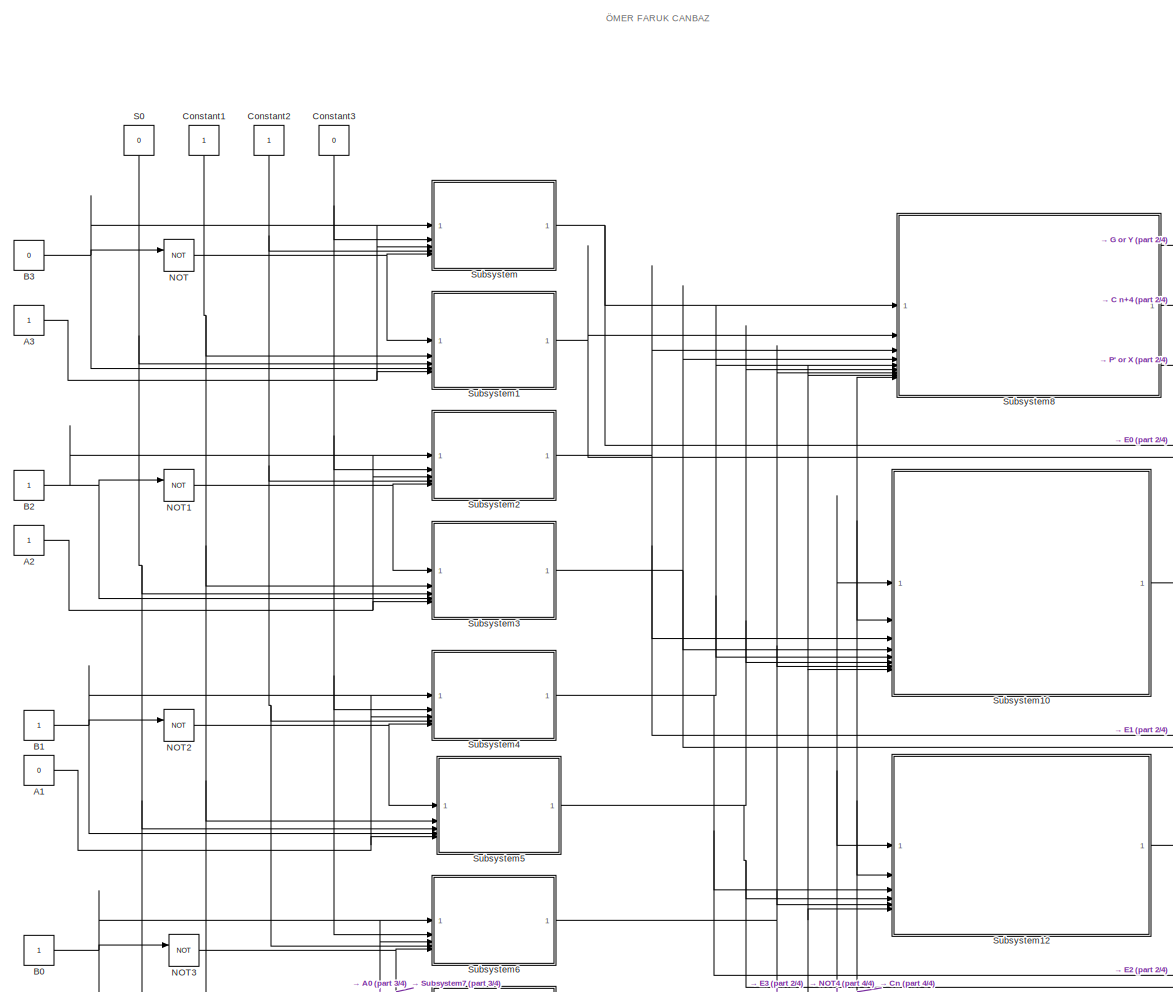
[diagram: root canvas - part 1/4, left side, full height]
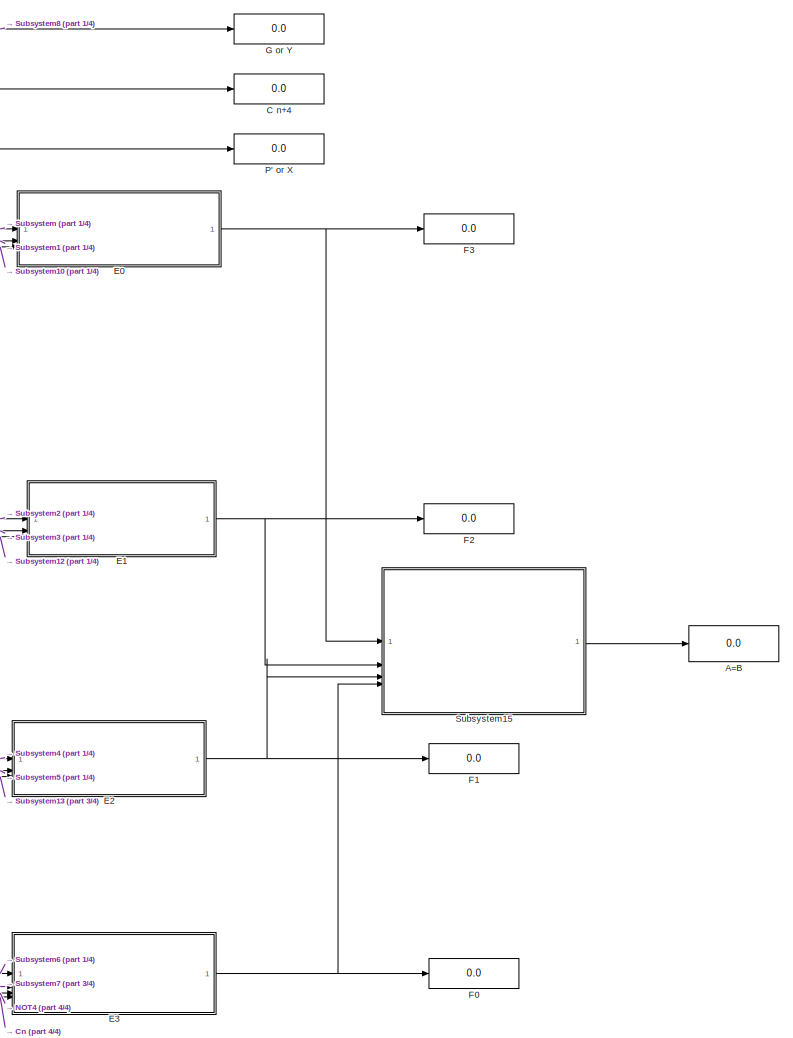
[diagram: root canvas - part 2/4, right side, full height]
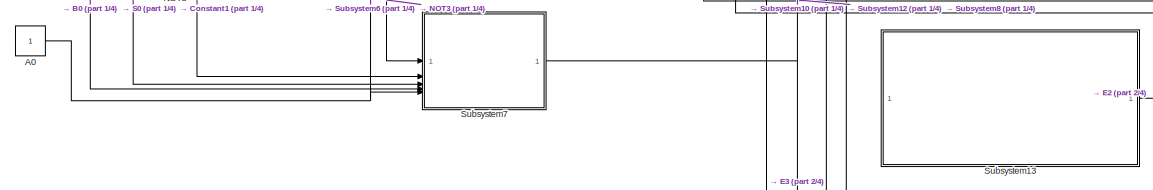
[diagram: root canvas - part 3/4, bottom left region]
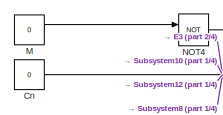
[diagram: root canvas - part 4/4, bottom left region]
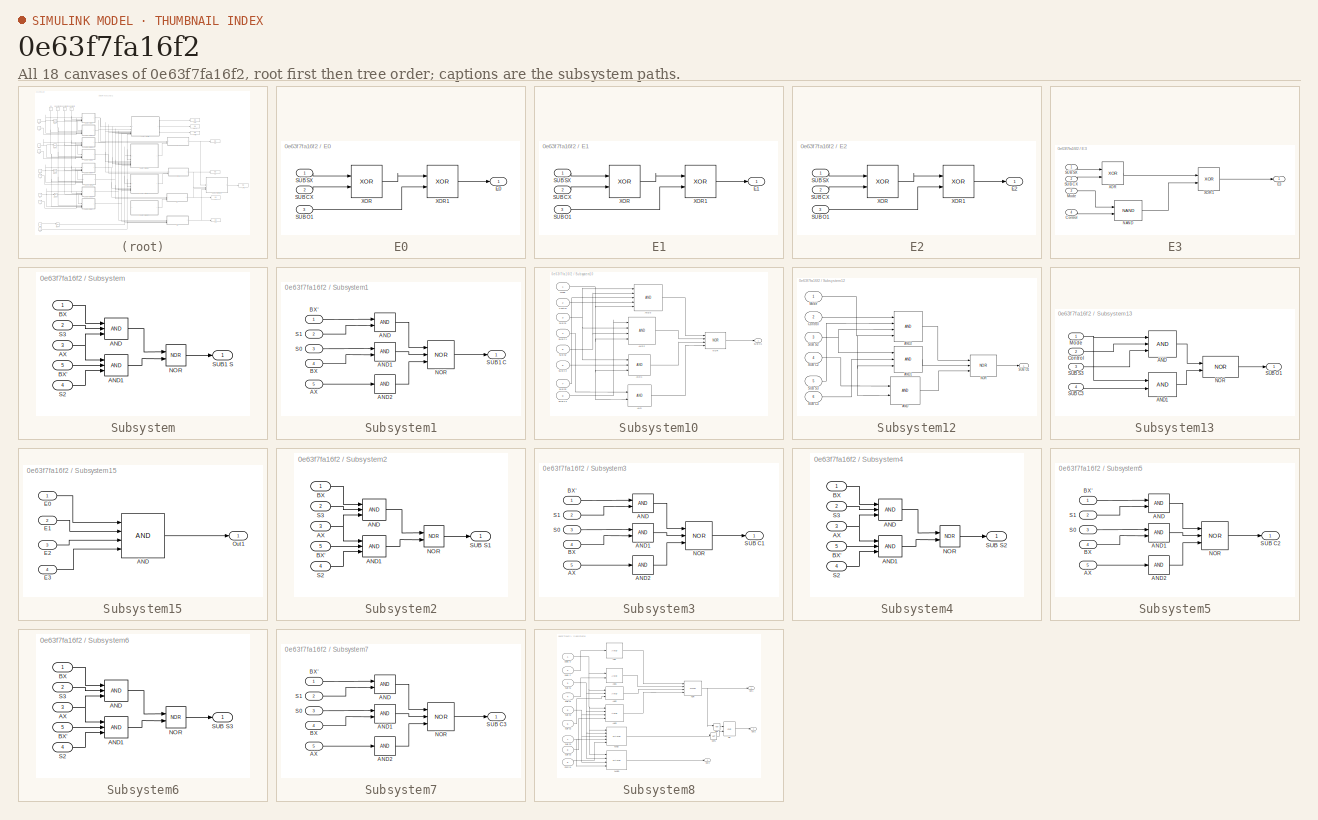
[diagram: thumbnail index - all 18 canvases of the model, root first then tree order]
MODEL slx_0e63f7fa16f2
KIND model
CONFIG AbsTol = auto
CONFIG EnableMultiTasking = off
CONFIG FixedStep = auto
CONFIG MaxStep = auto
CONFIG MinStep = auto
CONFIG RelTol = 1e-3
CONFIG SampleTimeConstraint = Unconstrained
CONFIG SolverName = VariableStepAuto
CONFIG StartTime = 0.0
CONFIG StopTime = 10.0
BLOCK [Constant] A0
BLOCK [Constant] A1
  Value = 0
BLOCK [Constant] A2
BLOCK [Constant] A3
BLOCK [Display] A=B
  Decimation = 1
BLOCK [Constant] B0
BLOCK [Constant] B1
BLOCK [Constant] B2
BLOCK [Constant] B3
  Value = 0
BLOCK [Display] C n+4
  Decimation = 1
BLOCK [Constant] Cn
  Value = 0
BLOCK [Constant] Constant1
  NameLocation = left
BLOCK [Constant] Constant2
  NameLocation = left
BLOCK [Constant] Constant3
  NameLocation = left
  Value = 0
BLOCK [SubSystem] E0
BLOCK [Outport] E0/E0
BLOCK [Inport] E0/SUB CX
  Port = 2
BLOCK [Inport] E0/SUB O1
  Port = 3
BLOCK [Inport] E0/SUB SX
BLOCK [Logic] E0/XOR
  AllPortsSameDT = off
  IconShape = distinctive
  Operator = XOR
  OutDataTypeStr = boolean
BLOCK [Logic] E0/XOR1
  AllPortsSameDT = off
  IconShape = distinctive
  Operator = XOR
  OutDataTypeStr = boolean
BLOCK [SubSystem] E1
BLOCK [Outport] E1/E1
BLOCK [Inport] E1/SUB CX
  Port = 2
BLOCK [Inport] E1/SUB O1
  Port = 3
BLOCK [Inport] E1/SUB SX
BLOCK [Logic] E1/XOR
  AllPortsSameDT = off
  IconShape = distinctive
  Operator = XOR
  OutDataTypeStr = boolean
BLOCK [Logic] E1/XOR1
  AllPortsSameDT = off
  IconShape = distinctive
  Operator = XOR
  OutDataTypeStr = boolean
BLOCK [SubSystem] E2
BLOCK [Outport] E2/E2
BLOCK [Inport] E2/SUB CX
  Port = 2
BLOCK [Inport] E2/SUB O1
  Port = 3
BLOCK [Inport] E2/SUB SX
BLOCK [Logic] E2/XOR
  AllPortsSameDT = off
  IconShape = distinctive
  Operator = XOR
  OutDataTypeStr = boolean
BLOCK [Logic] E2/XOR1
  AllPortsSameDT = off
  IconShape = distinctive
  Operator = XOR
  OutDataTypeStr = boolean
BLOCK [SubSystem] E3
BLOCK [Inport] E3/Control
  Port = 4
BLOCK [Outport] E3/E3
BLOCK [Inport] E3/Mode
  Port = 3
BLOCK [Logic] E3/NAND
  AllPortsSameDT = off
  IconShape = distinctive
  Operator = NAND
  OutDataTypeStr = boolean
BLOCK [Inport] E3/SUB CX
  Port = 2
BLOCK [Inport] E3/SUB SX
BLOCK [Logic] E3/XOR
  AllPortsSameDT = off
  IconShape = distinctive
  Operator = XOR
  OutDataTypeStr = boolean
BLOCK [Logic] E3/XOR1
  AllPortsSameDT = off
  IconShape = distinctive
  Operator = XOR
  OutDataTypeStr = boolean
BLOCK [Display] F0
  Decimation = 1
BLOCK [Display] F1
  Decimation = 1
BLOCK [Display] F2
  Decimation = 1
BLOCK [Display] F3
  Decimation = 1
BLOCK [Display] G or Y
  Decimation = 1
BLOCK [Constant] M
  Value = 0
BLOCK [Logic] NOT
  AllPortsSameDT = off
  IconShape = distinctive
  Operator = NOT
  OutDataTypeStr = boolean
BLOCK [Logic] NOT1
  AllPortsSameDT = off
  IconShape = distinctive
  Operator = NOT
  OutDataTypeStr = boolean
BLOCK [Logic] NOT2
  AllPortsSameDT = off
  IconShape = distinctive
  Operator = NOT
  OutDataTypeStr = boolean
BLOCK [Logic] NOT3
  AllPortsSameDT = off
  IconShape = distinctive
  Operator = NOT
  OutDataTypeStr = boolean
BLOCK [Logic] NOT4
  AllPortsSameDT = off
  IconShape = distinctive
  Operator = NOT
  OutDataTypeStr = boolean
BLOCK [Display] P' or X
  Decimation = 1
BLOCK [Constant] S0
  NameLocation = left
  Value = 0
BLOCK [SubSystem] Subsystem
BLOCK [Logic] Subsystem/AND
  AllPortsSameDT = off
  IconShape = distinctive
  Inputs = 3
  OutDataTypeStr = boolean
BLOCK [Logic] Subsystem/AND1
  AllPortsSameDT = off
  IconShape = distinctive
  Inputs = 3
  OutDataTypeStr = boolean
BLOCK [Inport] Subsystem/AX
  Port = 3
BLOCK [Inport] Subsystem/BX
BLOCK [Inport] Subsystem/BX'
  Port = 5
BLOCK [Logic] Subsystem/NOR
  AllPortsSameDT = off
  IconShape = distinctive
  Operator = NOR
  OutDataTypeStr = boolean
BLOCK [Inport] Subsystem/S2
  Port = 4
BLOCK [Inport] Subsystem/S3
  Port = 2
BLOCK [Outport] Subsystem/SUB1 S
BLOCK [SubSystem] Subsystem1
BLOCK [Logic] Subsystem1/AND
  AllPortsSameDT = off
  IconShape = distinctive
  OutDataTypeStr = boolean
BLOCK [Logic] Subsystem1/AND1
  AllPortsSameDT = off
  IconShape = distinctive
  OutDataTypeStr = boolean
BLOCK [Logic] Subsystem1/AND2
  AllPortsSameDT = off
  IconShape = distinctive
  Inputs = 1
  OutDataTypeStr = boolean
BLOCK [Inport] Subsystem1/AX
  Port = 5
BLOCK [Inport] Subsystem1/BX
  Port = 4
BLOCK [Inport] Subsystem1/BX'
BLOCK [Logic] Subsystem1/NOR
  AllPortsSameDT = off
  IconShape = distinctive
  Inputs = 3
  Operator = NOR
  OutDataTypeStr = boolean
BLOCK [Inport] Subsystem1/S0
  Port = 3
BLOCK [Inport] Subsystem1/S1
  Port = 2
BLOCK [Outport] Subsystem1/SUB1 C
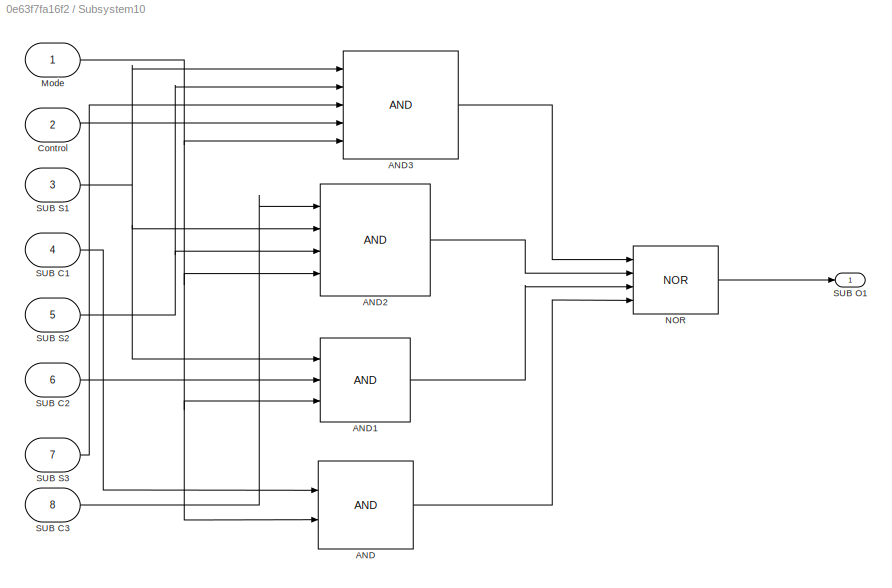
BLOCK [SubSystem] Subsystem10
BLOCK [Inport] Subsystem10/ Control
  Port = 2
BLOCK [Inport] Subsystem10/ Mode
BLOCK [Logic] Subsystem10/AND
  AllPortsSameDT = off
  IconShape = distinctive
  OutDataTypeStr = boolean
BLOCK [Logic] Subsystem10/AND1
  AllPortsSameDT = off
  IconShape = distinctive
  Inputs = 3
  OutDataTypeStr = boolean
BLOCK [Logic] Subsystem10/AND2
  AllPortsSameDT = off
  IconShape = distinctive
  Inputs = 4
  OutDataTypeStr = boolean
BLOCK [Logic] Subsystem10/AND3
  AllPortsSameDT = off
  IconShape = distinctive
  Inputs = 5
  OutDataTypeStr = boolean
BLOCK [Logic] Subsystem10/NOR
  AllPortsSameDT = off
  IconShape = distinctive
  Inputs = 4
  Operator = NOR
  OutDataTypeStr = boolean
BLOCK [Inport] Subsystem10/SUB C1
  Port = 4
BLOCK [Inport] Subsystem10/SUB C2
  Port = 6
BLOCK [Inport] Subsystem10/SUB C3
  Port = 8
BLOCK [Outport] Subsystem10/SUB O1
BLOCK [Inport] Subsystem10/SUB S1
  Port = 3
BLOCK [Inport] Subsystem10/SUB S2
  Port = 5
BLOCK [Inport] Subsystem10/SUB S3
  Port = 7
BLOCK [SubSystem] Subsystem12
BLOCK [Inport] Subsystem12/ Control
  Port = 2
BLOCK [Inport] Subsystem12/ Mode
BLOCK [Logic] Subsystem12/AND
  AllPortsSameDT = off
  IconShape = distinctive
  OutDataTypeStr = boolean
BLOCK [Logic] Subsystem12/AND1
  AllPortsSameDT = off
  IconShape = distinctive
  Inputs = 3
  OutDataTypeStr = boolean
BLOCK [Logic] Subsystem12/AND2
  AllPortsSameDT = off
  IconShape = distinctive
  Inputs = 4
  OutDataTypeStr = boolean
BLOCK [Logic] Subsystem12/NOR
  AllPortsSameDT = off
  IconShape = distinctive
  Inputs = 3
  Operator = NOR
  OutDataTypeStr = boolean
BLOCK [Inport] Subsystem12/SUB C2
  Port = 4
BLOCK [Inport] Subsystem12/SUB C3
  Port = 6
BLOCK [Outport] Subsystem12/SUB O1
BLOCK [Inport] Subsystem12/SUB S2
  Port = 3
BLOCK [Inport] Subsystem12/SUB S3
  Port = 5
BLOCK [SubSystem] Subsystem13
BLOCK [Logic] Subsystem13/AND
  AllPortsSameDT = off
  IconShape = distinctive
  Inputs = 3
  OutDataTypeStr = boolean
BLOCK [Logic] Subsystem13/AND1
  AllPortsSameDT = off
  IconShape = distinctive
  OutDataTypeStr = boolean
BLOCK [Inport] Subsystem13/Control
  Port = 2
BLOCK [Inport] Subsystem13/Mode
BLOCK [Logic] Subsystem13/NOR
  AllPortsSameDT = off
  IconShape = distinctive
  Operator = NOR
  OutDataTypeStr = boolean
BLOCK [Inport] Subsystem13/SUB C3
  Port = 4
BLOCK [Outport] Subsystem13/SUB O1
BLOCK [Inport] Subsystem13/SUB S3
  Port = 3
BLOCK [SubSystem] Subsystem15
BLOCK [Logic] Subsystem15/AND
  AllPortsSameDT = off
  IconShape = distinctive
  Inputs = 4
  OutDataTypeStr = boolean
BLOCK [Inport] Subsystem15/E0
BLOCK [Inport] Subsystem15/E1
  Port = 2
BLOCK [Inport] Subsystem15/E2
  Port = 3
BLOCK [Inport] Subsystem15/E3
  Port = 4
BLOCK [Outport] Subsystem15/Out1
BLOCK [SubSystem] Subsystem2
BLOCK [Logic] Subsystem2/AND
  AllPortsSameDT = off
  IconShape = distinctive
  Inputs = 3
  OutDataTypeStr = boolean
BLOCK [Logic] Subsystem2/AND1
  AllPortsSameDT = off
  IconShape = distinctive
  Inputs = 3
  OutDataTypeStr = boolean
BLOCK [Inport] Subsystem2/AX
  Port = 3
BLOCK [Inport] Subsystem2/BX
BLOCK [Inport] Subsystem2/BX'
  Port = 5
BLOCK [Logic] Subsystem2/NOR
  AllPortsSameDT = off
  IconShape = distinctive
  Operator = NOR
  OutDataTypeStr = boolean
BLOCK [Inport] Subsystem2/S2
  Port = 4
BLOCK [Inport] Subsystem2/S3
  Port = 2
BLOCK [Outport] Subsystem2/SUB S1
BLOCK [SubSystem] Subsystem3
BLOCK [Logic] Subsystem3/AND
  AllPortsSameDT = off
  IconShape = distinctive
  OutDataTypeStr = boolean
BLOCK [Logic] Subsystem3/AND1
  AllPortsSameDT = off
  IconShape = distinctive
  OutDataTypeStr = boolean
BLOCK [Logic] Subsystem3/AND2
  AllPortsSameDT = off
  IconShape = distinctive
  Inputs = 1
  OutDataTypeStr = boolean
BLOCK [Inport] Subsystem3/AX
  Port = 5
BLOCK [Inport] Subsystem3/BX
  Port = 4
BLOCK [Inport] Subsystem3/BX'
BLOCK [Logic] Subsystem3/NOR
  AllPortsSameDT = off
  IconShape = distinctive
  Inputs = 3
  Operator = NOR
  OutDataTypeStr = boolean
BLOCK [Inport] Subsystem3/S0
  Port = 3
BLOCK [Inport] Subsystem3/S1
  Port = 2
BLOCK [Outport] Subsystem3/SUB C1
BLOCK [SubSystem] Subsystem4
BLOCK [Logic] Subsystem4/AND
  AllPortsSameDT = off
  IconShape = distinctive
  Inputs = 3
  OutDataTypeStr = boolean
BLOCK [Logic] Subsystem4/AND1
  AllPortsSameDT = off
  IconShape = distinctive
  Inputs = 3
  OutDataTypeStr = boolean
BLOCK [Inport] Subsystem4/AX
  Port = 3
BLOCK [Inport] Subsystem4/BX
BLOCK [Inport] Subsystem4/BX'
  Port = 5
BLOCK [Logic] Subsystem4/NOR
  AllPortsSameDT = off
  IconShape = distinctive
  Operator = NOR
  OutDataTypeStr = boolean
BLOCK [Inport] Subsystem4/S2
  Port = 4
BLOCK [Inport] Subsystem4/S3
  Port = 2
BLOCK [Outport] Subsystem4/SUB S2
BLOCK [SubSystem] Subsystem5
BLOCK [Logic] Subsystem5/AND
  AllPortsSameDT = off
  IconShape = distinctive
  OutDataTypeStr = boolean
BLOCK [Logic] Subsystem5/AND1
  AllPortsSameDT = off
  IconShape = distinctive
  OutDataTypeStr = boolean
BLOCK [Logic] Subsystem5/AND2
  AllPortsSameDT = off
  IconShape = distinctive
  Inputs = 1
  OutDataTypeStr = boolean
BLOCK [Inport] Subsystem5/AX
  Port = 5
BLOCK [Inport] Subsystem5/BX
  Port = 4
BLOCK [Inport] Subsystem5/BX'
BLOCK [Logic] Subsystem5/NOR
  AllPortsSameDT = off
  IconShape = distinctive
  Inputs = 3
  Operator = NOR
  OutDataTypeStr = boolean
BLOCK [Inport] Subsystem5/S0
  Port = 3
BLOCK [Inport] Subsystem5/S1
  Port = 2
BLOCK [Outport] Subsystem5/SUB C2
BLOCK [SubSystem] Subsystem6
BLOCK [Logic] Subsystem6/AND
  AllPortsSameDT = off
  IconShape = distinctive
  Inputs = 3
  OutDataTypeStr = boolean
BLOCK [Logic] Subsystem6/AND1
  AllPortsSameDT = off
  IconShape = distinctive
  Inputs = 3
  OutDataTypeStr = boolean
BLOCK [Inport] Subsystem6/AX
  Port = 3
BLOCK [Inport] Subsystem6/BX
BLOCK [Inport] Subsystem6/BX'
  Port = 5
BLOCK [Logic] Subsystem6/NOR
  AllPortsSameDT = off
  IconShape = distinctive
  Operator = NOR
  OutDataTypeStr = boolean
BLOCK [Inport] Subsystem6/S2
  Port = 4
BLOCK [Inport] Subsystem6/S3
  Port = 2
BLOCK [Outport] Subsystem6/SUB S3
BLOCK [SubSystem] Subsystem7
BLOCK [Logic] Subsystem7/AND
  AllPortsSameDT = off
  IconShape = distinctive
  OutDataTypeStr = boolean
BLOCK [Logic] Subsystem7/AND1
  AllPortsSameDT = off
  IconShape = distinctive
  OutDataTypeStr = boolean
BLOCK [Logic] Subsystem7/AND2
  AllPortsSameDT = off
  IconShape = distinctive
  Inputs = 1
  OutDataTypeStr = boolean
BLOCK [Inport] Subsystem7/AX
  Port = 5
BLOCK [Inport] Subsystem7/BX
  Port = 4
BLOCK [Inport] Subsystem7/BX'
BLOCK [Logic] Subsystem7/NOR
  AllPortsSameDT = off
  IconShape = distinctive
  Inputs = 3
  Operator = NOR
  OutDataTypeStr = boolean
BLOCK [Inport] Subsystem7/S0
  Port = 3
BLOCK [Inport] Subsystem7/S1
  Port = 2
BLOCK [Outport] Subsystem7/SUB C3
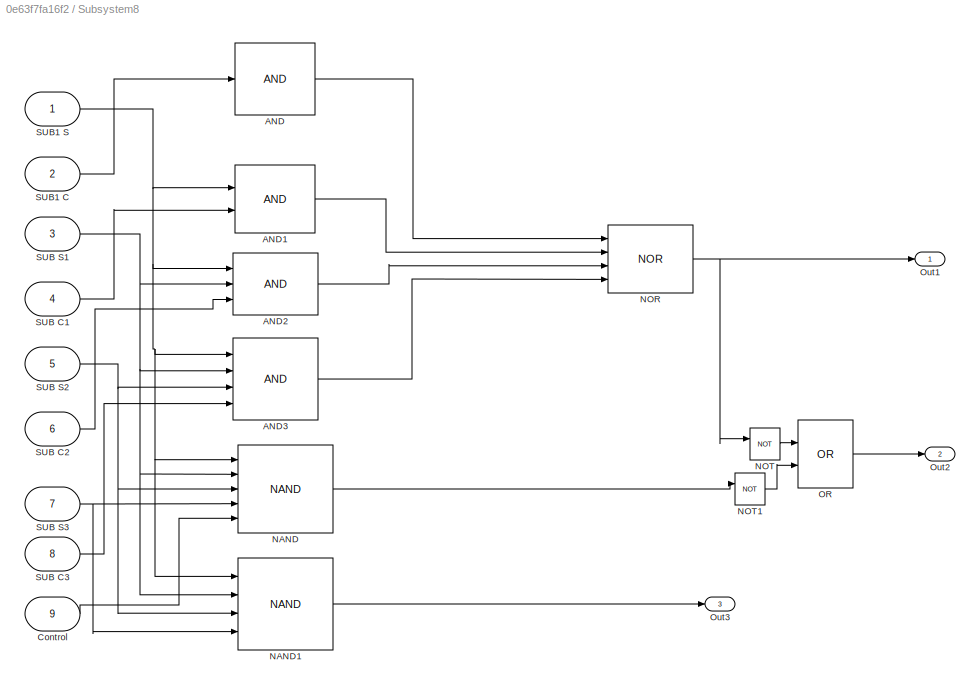
BLOCK [SubSystem] Subsystem8
BLOCK [Logic] Subsystem8/AND
  AllPortsSameDT = off
  IconShape = distinctive
  Inputs = 1
  OutDataTypeStr = boolean
BLOCK [Logic] Subsystem8/AND1
  AllPortsSameDT = off
  IconShape = distinctive
  OutDataTypeStr = boolean
BLOCK [Logic] Subsystem8/AND2
  AllPortsSameDT = off
  IconShape = distinctive
  Inputs = 3
  OutDataTypeStr = boolean
BLOCK [Logic] Subsystem8/AND3
  AllPortsSameDT = off
  IconShape = distinctive
  Inputs = 4
  OutDataTypeStr = boolean
BLOCK [Inport] Subsystem8/Control
  Port = 9
BLOCK [Logic] Subsystem8/NAND
  AllPortsSameDT = off
  IconShape = distinctive
  Inputs = 5
  Operator = NAND
  OutDataTypeStr = boolean
BLOCK [Logic] Subsystem8/NAND1
  AllPortsSameDT = off
  IconShape = distinctive
  Inputs = 4
  Operator = NAND
  OutDataTypeStr = boolean
BLOCK [Logic] Subsystem8/NOR
  AllPortsSameDT = off
  IconShape = distinctive
  Inputs = 4
  Operator = NOR
  OutDataTypeStr = boolean
BLOCK [Logic] Subsystem8/NOT
  AllPortsSameDT = off
  IconShape = distinctive
  Operator = NOT
  OutDataTypeStr = boolean
BLOCK [Logic] Subsystem8/NOT1
  AllPortsSameDT = off
  IconShape = distinctive
  Operator = NOT
  OutDataTypeStr = boolean
BLOCK [Logic] Subsystem8/OR
  AllPortsSameDT = off
  IconShape = distinctive
  Operator = OR
  OutDataTypeStr = boolean
BLOCK [Outport] Subsystem8/Out1
BLOCK [Outport] Subsystem8/Out2
  Port = 2
BLOCK [Outport] Subsystem8/Out3
  Port = 3
BLOCK [Inport] Subsystem8/SUB C1
  Port = 4
BLOCK [Inport] Subsystem8/SUB C2
  Port = 6
BLOCK [Inport] Subsystem8/SUB C3
  Port = 8
BLOCK [Inport] Subsystem8/SUB S1
  Port = 3
BLOCK [Inport] Subsystem8/SUB S2
  Port = 5
BLOCK [Inport] Subsystem8/SUB S3
  Port = 7
BLOCK [Inport] Subsystem8/SUB1 C
  Port = 2
BLOCK [Inport] Subsystem8/SUB1 S
ANNOTATION (root): ÖMER FARUK CANBAZ
NET A0:1 -> Subsystem6:3, Subsystem7:5
NET A1:1 -> Subsystem4:3, Subsystem5:5
NET A2:1 -> Subsystem2:3, Subsystem3:5
NET A3:1 -> Subsystem1:5, Subsystem:3
NET B0:1 -> NOT3:1, Subsystem6:1, Subsystem7:4
NET B1:1 -> NOT2:1, Subsystem4:1, Subsystem5:4
NET B2:1 -> NOT1:1, Subsystem2:1, Subsystem3:4
NET B3:1 -> NOT:1, Subsystem1:4, Subsystem:1
NET Cn:1 -> E3:4, Subsystem10:2, Subsystem12:2, Subsystem8:9
NET Constant1:1 -> Subsystem1:2, Subsystem3:2, Subsystem5:2, Subsystem7:2
NET Constant2:1 -> Subsystem2:4, Subsystem4:4, Subsystem6:4, Subsystem:4
NET Constant3:1 -> Subsystem2:2, Subsystem4:2, Subsystem6:2, Subsystem:2
LINE E0/SUB CX:1 -> E0/XOR:2
LINE E0/SUB O1:1 -> E0/XOR1:2
LINE E0/SUB SX:1 -> E0/XOR:1
LINE E0/XOR1:1 -> E0/E0:1
LINE E0/XOR:1 -> E0/XOR1:1
NET E0:1 -> F3:1, Subsystem15:1
LINE E1/SUB CX:1 -> E1/XOR:2
LINE E1/SUB O1:1 -> E1/XOR1:2
LINE E1/SUB SX:1 -> E1/XOR:1
LINE E1/XOR1:1 -> E1/E1:1
LINE E1/XOR:1 -> E1/XOR1:1
NET E1:1 -> F2:1, Subsystem15:2
LINE E2/SUB CX:1 -> E2/XOR:2
LINE E2/SUB O1:1 -> E2/XOR1:2
LINE E2/SUB SX:1 -> E2/XOR:1
LINE E2/XOR1:1 -> E2/E2:1
LINE E2/XOR:1 -> E2/XOR1:1
NET E2:1 -> F1:1, Subsystem15:3
LINE E3/Control:1 -> E3/NAND:2
LINE E3/Mode:1 -> E3/NAND:1
LINE E3/NAND:1 -> E3/XOR1:2
LINE E3/SUB CX:1 -> E3/XOR:2
LINE E3/SUB SX:1 -> E3/XOR:1
LINE E3/XOR1:1 -> E3/E3:1
LINE E3/XOR:1 -> E3/XOR1:1
NET E3:1 -> F0:1, Subsystem15:4
LINE M:1 -> NOT4:1
NET NOT1:1 -> Subsystem2:5, Subsystem3:1
NET NOT2:1 -> Subsystem4:5, Subsystem5:1
NET NOT3:1 -> Subsystem6:5, Subsystem7:1
NET NOT4:1 -> E3:3, Subsystem10:1, Subsystem12:1
NET NOT:1 -> Subsystem1:1, Subsystem:5
NET S0:1 -> Subsystem1:3, Subsystem3:3, Subsystem5:3, Subsystem7:3
LINE Subsystem/AND1:1 -> Subsystem/NOR:2
LINE Subsystem/AND:1 -> Subsystem/NOR:1
NET Subsystem/AX:1 -> Subsystem/AND1:1, Subsystem/AND:3
LINE Subsystem/BX':1 -> Subsystem/AND1:2
LINE Subsystem/BX:1 -> Subsystem/AND:1
LINE Subsystem/NOR:1 -> Subsystem/SUB1 S:1
LINE Subsystem/S2:1 -> Subsystem/AND1:3
LINE Subsystem/S3:1 -> Subsystem/AND:2
LINE Subsystem1/AND1:1 -> Subsystem1/NOR:2
LINE Subsystem1/AND2:1 -> Subsystem1/NOR:3
LINE Subsystem1/AND:1 -> Subsystem1/NOR:1
LINE Subsystem1/AX:1 -> Subsystem1/AND2:1
LINE Subsystem1/BX':1 -> Subsystem1/AND:1
LINE Subsystem1/BX:1 -> Subsystem1/AND1:2
LINE Subsystem1/NOR:1 -> Subsystem1/SUB1 C:1
LINE Subsystem1/S0:1 -> Subsystem1/AND1:1
LINE Subsystem1/S1:1 -> Subsystem1/AND:2
LINE Subsystem10/ Control:1 -> Subsystem10/AND3:4
NET Subsystem10/ Mode:1 -> Subsystem10/AND1:3, Subsystem10/AND2:4, Subsystem10/AND3:5, Subsystem10/AND:2
LINE Subsystem10/AND1:1 -> Subsystem10/NOR:3
LINE Subsystem10/AND2:1 -> Subsystem10/NOR:2
LINE Subsystem10/AND3:1 -> Subsystem10/NOR:1
LINE Subsystem10/AND:1 -> Subsystem10/NOR:4
LINE Subsystem10/NOR:1 -> Subsystem10/SUB O1:1
LINE Subsystem10/SUB C1:1 -> Subsystem10/AND:1
LINE Subsystem10/SUB C2:1 -> Subsystem10/AND1:2
LINE Subsystem10/SUB C3:1 -> Subsystem10/AND2:1
NET Subsystem10/SUB S1:1 -> Subsystem10/AND1:1, Subsystem10/AND2:2, Subsystem10/AND3:1
NET Subsystem10/SUB S2:1 -> Subsystem10/AND2:3, Subsystem10/AND3:2
LINE Subsystem10/SUB S3:1 -> Subsystem10/AND3:3
LINE Subsystem10:1 -> E0:3
LINE Subsystem12/ Control:1 -> Subsystem12/AND2:1
NET Subsystem12/ Mode:1 -> Subsystem12/AND1:3, Subsystem12/AND2:4, Subsystem12/AND:2
LINE Subsystem12/AND1:1 -> Subsystem12/NOR:2
LINE Subsystem12/AND2:1 -> Subsystem12/NOR:1
LINE Subsystem12/AND:1 -> Subsystem12/NOR:3
LINE Subsystem12/NOR:1 -> Subsystem12/SUB O1:1
LINE Subsystem12/SUB C2:1 -> Subsystem12/AND:1
LINE Subsystem12/SUB C3:1 -> Subsystem12/AND1:2
NET Subsystem12/SUB S2:1 -> Subsystem12/AND1:1, Subsystem12/AND2:3
LINE Subsystem12/SUB S3:1 -> Subsystem12/AND2:2
LINE Subsystem12:1 -> E1:3
LINE Subsystem13/AND1:1 -> Subsystem13/NOR:2
LINE Subsystem13/AND:1 -> Subsystem13/NOR:1
LINE Subsystem13/Control:1 -> Subsystem13/AND:2
NET Subsystem13/Mode:1 -> Subsystem13/AND1:1, Subsystem13/AND:1
LINE Subsystem13/NOR:1 -> Subsystem13/SUB O1:1
LINE Subsystem13/SUB C3:1 -> Subsystem13/AND1:2
LINE Subsystem13/SUB S3:1 -> Subsystem13/AND:3
LINE Subsystem13:1 -> E2:3
LINE Subsystem15/AND:1 -> Subsystem15/Out1:1
LINE Subsystem15/E0:1 -> Subsystem15/AND:1
LINE Subsystem15/E1:1 -> Subsystem15/AND:2
LINE Subsystem15/E2:1 -> Subsystem15/AND:3
LINE Subsystem15/E3:1 -> Subsystem15/AND:4
LINE Subsystem15:1 -> A=B:1
NET Subsystem1:1 -> E0:2, Subsystem8:2
LINE Subsystem2/AND1:1 -> Subsystem2/NOR:2
LINE Subsystem2/AND:1 -> Subsystem2/NOR:1
NET Subsystem2/AX:1 -> Subsystem2/AND1:1, Subsystem2/AND:3
LINE Subsystem2/BX':1 -> Subsystem2/AND1:2
LINE Subsystem2/BX:1 -> Subsystem2/AND:1
LINE Subsystem2/NOR:1 -> Subsystem2/SUB S1:1
LINE Subsystem2/S2:1 -> Subsystem2/AND1:3
LINE Subsystem2/S3:1 -> Subsystem2/AND:2
NET Subsystem2:1 -> E1:1, Subsystem10:3, Subsystem8:3
LINE Subsystem3/AND1:1 -> Subsystem3/NOR:2
LINE Subsystem3/AND2:1 -> Subsystem3/NOR:3
LINE Subsystem3/AND:1 -> Subsystem3/NOR:1
LINE Subsystem3/AX:1 -> Subsystem3/AND2:1
LINE Subsystem3/BX':1 -> Subsystem3/AND:1
LINE Subsystem3/BX:1 -> Subsystem3/AND1:2
LINE Subsystem3/NOR:1 -> Subsystem3/SUB C1:1
LINE Subsystem3/S0:1 -> Subsystem3/AND1:1
LINE Subsystem3/S1:1 -> Subsystem3/AND:2
NET Subsystem3:1 -> E1:2, Subsystem10:4, Subsystem8:4
LINE Subsystem4/AND1:1 -> Subsystem4/NOR:2
LINE Subsystem4/AND:1 -> Subsystem4/NOR:1
NET Subsystem4/AX:1 -> Subsystem4/AND1:1, Subsystem4/AND:3
LINE Subsystem4/BX':1 -> Subsystem4/AND1:2
LINE Subsystem4/BX:1 -> Subsystem4/AND:1
LINE Subsystem4/NOR:1 -> Subsystem4/SUB S2:1
LINE Subsystem4/S2:1 -> Subsystem4/AND1:3
LINE Subsystem4/S3:1 -> Subsystem4/AND:2
NET Subsystem4:1 -> E2:1, Subsystem10:5, Subsystem12:3, Subsystem8:5
LINE Subsystem5/AND1:1 -> Subsystem5/NOR:2
LINE Subsystem5/AND2:1 -> Subsystem5/NOR:3
LINE Subsystem5/AND:1 -> Subsystem5/NOR:1
LINE Subsystem5/AX:1 -> Subsystem5/AND2:1
LINE Subsystem5/BX':1 -> Subsystem5/AND:1
LINE Subsystem5/BX:1 -> Subsystem5/AND1:2
LINE Subsystem5/NOR:1 -> Subsystem5/SUB C2:1
LINE Subsystem5/S0:1 -> Subsystem5/AND1:1
LINE Subsystem5/S1:1 -> Subsystem5/AND:2
NET Subsystem5:1 -> E2:2, Subsystem10:6, Subsystem12:4, Subsystem8:6
LINE Subsystem6/AND1:1 -> Subsystem6/NOR:2
LINE Subsystem6/AND:1 -> Subsystem6/NOR:1
NET Subsystem6/AX:1 -> Subsystem6/AND1:1, Subsystem6/AND:3
LINE Subsystem6/BX':1 -> Subsystem6/AND1:2
LINE Subsystem6/BX:1 -> Subsystem6/AND:1
LINE Subsystem6/NOR:1 -> Subsystem6/SUB S3:1
LINE Subsystem6/S2:1 -> Subsystem6/AND1:3
LINE Subsystem6/S3:1 -> Subsystem6/AND:2
NET Subsystem6:1 -> E3:1, Subsystem10:7, Subsystem12:5, Subsystem8:7
LINE Subsystem7/AND1:1 -> Subsystem7/NOR:2
LINE Subsystem7/AND2:1 -> Subsystem7/NOR:3
LINE Subsystem7/AND:1 -> Subsystem7/NOR:1
LINE Subsystem7/AX:1 -> Subsystem7/AND2:1
LINE Subsystem7/BX':1 -> Subsystem7/AND:1
LINE Subsystem7/BX:1 -> Subsystem7/AND1:2
LINE Subsystem7/NOR:1 -> Subsystem7/SUB C3:1
LINE Subsystem7/S0:1 -> Subsystem7/AND1:1
LINE Subsystem7/S1:1 -> Subsystem7/AND:2
NET Subsystem7:1 -> E3:2, Subsystem10:8, Subsystem12:6, Subsystem8:8
LINE Subsystem8/AND1:1 -> Subsystem8/NOR:2
LINE Subsystem8/AND2:1 -> Subsystem8/NOR:3
LINE Subsystem8/AND3:1 -> Subsystem8/NOR:4
LINE Subsystem8/AND:1 -> Subsystem8/NOR:1
LINE Subsystem8/Control:1 -> Subsystem8/NAND:5
LINE Subsystem8/NAND1:1 -> Subsystem8/Out3:1
LINE Subsystem8/NAND:1 -> Subsystem8/NOT1:1
NET Subsystem8/NOR:1 -> Subsystem8/NOT:1, Subsystem8/Out1:1
LINE Subsystem8/NOT1:1 -> Subsystem8/OR:2
LINE Subsystem8/NOT:1 -> Subsystem8/OR:1
LINE Subsystem8/OR:1 -> Subsystem8/Out2:1
LINE Subsystem8/SUB C1:1 -> Subsystem8/AND1:2
LINE Subsystem8/SUB C2:1 -> Subsystem8/AND2:3
LINE Subsystem8/SUB C3:1 -> Subsystem8/AND3:4
NET Subsystem8/SUB S1:1 -> Subsystem8/AND2:2, Subsystem8/AND3:2, Subsystem8/NAND1:2, Subsystem8/NAND:2
NET Subsystem8/SUB S2:1 -> Subsystem8/AND3:3, Subsystem8/NAND1:3, Subsystem8/NAND:3
NET Subsystem8/SUB S3:1 -> Subsystem8/NAND1:4, Subsystem8/NAND:4
LINE Subsystem8/SUB1 C:1 -> Subsystem8/AND:1
NET Subsystem8/SUB1 S:1 -> Subsystem8/AND1:1, Subsystem8/AND2:1, Subsystem8/AND3:1, Subsystem8/NAND1:1, Subsystem8/NAND:1
LINE Subsystem8:1 -> G or Y:1
LINE Subsystem8:2 -> C n+4:1
LINE Subsystem8:3 -> P' or X:1
NET Subsystem:1 -> E0:1, Subsystem8:1
note: NET lines group one-source signal fan-out (src -> all destinations, sorted); 1:1 wires keep LINE
